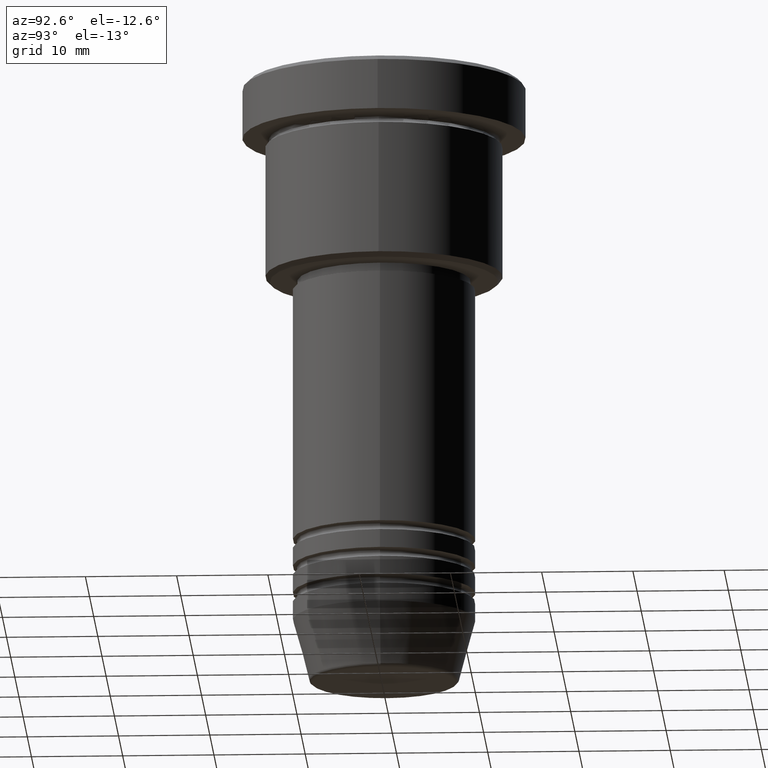
[diagram: clean part render]
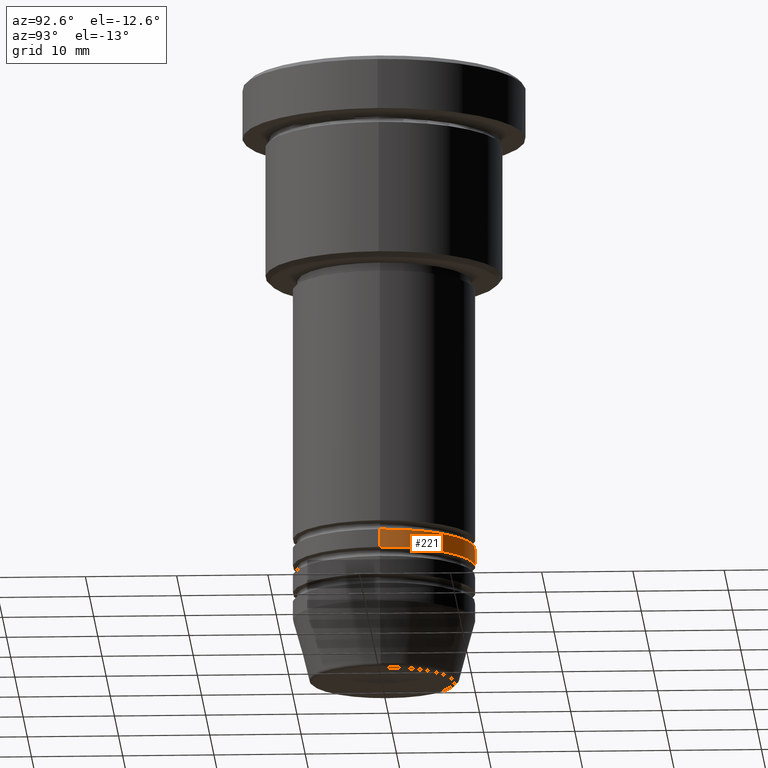
[diagram: same view with one face highlighted and labeled with its STEP entity id]
A machine part, auxiliary view. The second image highlights one B-rep face of the part: STEP entity #221.
In plain terms, the highlighted cylindrical surface (partial cylindrical patch) has radius 10 mm, axis along (-0, -0, 1).
Its self-contained STEP definition (entity closure, byte-faithful):
#17 = VERTEX_POINT ( 'NONE', #1124 ) ;
#66 = EDGE_CURVE ( 'NONE', #1089, #256, #726, .T. ) ;
#70 = AXIS2_PLACEMENT_3D ( 'NONE', #119, #479, #642 ) ;
#95 = ORIENTED_EDGE ( 'NONE', *, *, #309, .F. ) ;
#119 = CARTESIAN_POINT ( 'NONE',  ( 0.000000000000000000, 0.000000000000000000, -51.99999999999997868 ) ) ;
#199 = CARTESIAN_POINT ( 'NONE',  ( -10.00000000000000000, 1.224646799147353256E-15, -53.99999999999997868 ) ) ;
#221 = ADVANCED_FACE ( 'NONE', ( #870 ), #331, .T. ) ;
#256 = VERTEX_POINT ( 'NONE', #199 ) ;
#309 = EDGE_CURVE ( 'NONE', #1089, #17, #727, .T. ) ;
#319 = CARTESIAN_POINT ( 'NONE',  ( 10.00000000000000000, 0.000000000000000000, -53.99999999999997868 ) ) ;
#331 = CYLINDRICAL_SURFACE ( 'NONE', #496, 10.00000000000000000 ) ;
#365 = DIRECTION ( 'NONE',  ( -0.000000000000000000, -0.000000000000000000, 1.000000000000000000 ) ) ;
#405 = VECTOR ( 'NONE', #365, 1000.000000000000000 ) ;
#428 = EDGE_LOOP ( 'NONE', ( #667, #1011, #1144, #95 ) ) ;
#470 = CARTESIAN_POINT ( 'NONE',  ( 10.00000000000000000, 0.000000000000000000, 0.000000000000000000 ) ) ;
#479 = DIRECTION ( 'NONE',  ( -0.000000000000000000, -0.000000000000000000, 1.000000000000000000 ) ) ;
#496 = AXIS2_PLACEMENT_3D ( 'NONE', #1148, #1082, #707 ) ;
#520 = AXIS2_PLACEMENT_3D ( 'NONE', #1140, #1051, #1036 ) ;
#607 = VERTEX_POINT ( 'NONE', #911 ) ;
#642 = DIRECTION ( 'NONE',  ( 1.000000000000000000, 0.000000000000000000, 0.000000000000000000 ) ) ;
#645 = EDGE_CURVE ( 'NONE', #256, #607, #1127, .T. ) ;
#667 = ORIENTED_EDGE ( 'NONE', *, *, #66, .T. ) ;
#681 = VECTOR ( 'NONE', #847, 1000.000000000000000 ) ;
#707 = DIRECTION ( 'NONE',  ( 1.000000000000000000, 0.000000000000000000, 0.000000000000000000 ) ) ;
#726 = CIRCLE ( 'NONE', #520, 10.00000000000000000 ) ;
#727 = LINE ( 'NONE', #470, #405 ) ;
#847 = DIRECTION ( 'NONE',  ( -0.000000000000000000, -0.000000000000000000, 1.000000000000000000 ) ) ;
#870 = FACE_OUTER_BOUND ( 'NONE', #428, .T. ) ;
#911 = CARTESIAN_POINT ( 'NONE',  ( -10.00000000000000000, 1.224646799147353256E-15, -51.99999999999997868 ) ) ;
#934 = EDGE_CURVE ( 'NONE', #17, #607, #962, .T. ) ;
#962 = CIRCLE ( 'NONE', #70, 10.00000000000000000 ) ;
#1011 = ORIENTED_EDGE ( 'NONE', *, *, #645, .T. ) ;
#1036 = DIRECTION ( 'NONE',  ( 1.000000000000000000, 0.000000000000000000, 0.000000000000000000 ) ) ;
#1051 = DIRECTION ( 'NONE',  ( -0.000000000000000000, -0.000000000000000000, 1.000000000000000000 ) ) ;
#1082 = DIRECTION ( 'NONE',  ( -0.000000000000000000, -0.000000000000000000, 1.000000000000000000 ) ) ;
#1089 = VERTEX_POINT ( 'NONE', #319 ) ;
#1119 = CARTESIAN_POINT ( 'NONE',  ( -10.00000000000000000, 1.224646799147353256E-15, 0.000000000000000000 ) ) ;
#1124 = CARTESIAN_POINT ( 'NONE',  ( 10.00000000000000000, 0.000000000000000000, -51.99999999999997868 ) ) ;
#1127 = LINE ( 'NONE', #1119, #681 ) ;
#1140 = CARTESIAN_POINT ( 'NONE',  ( 0.000000000000000000, 0.000000000000000000, -53.99999999999997868 ) ) ;
#1144 = ORIENTED_EDGE ( 'NONE', *, *, #934, .F. ) ;
#1148 = CARTESIAN_POINT ( 'NONE',  ( 0.000000000000000000, 0.000000000000000000, 0.000000000000000000 ) ) ;